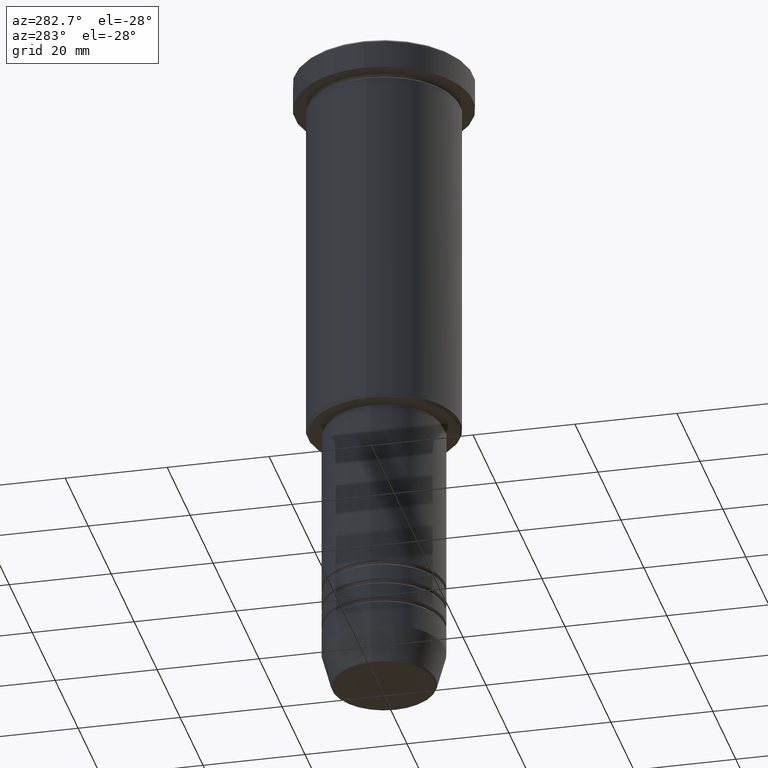
[diagram: clean part render]
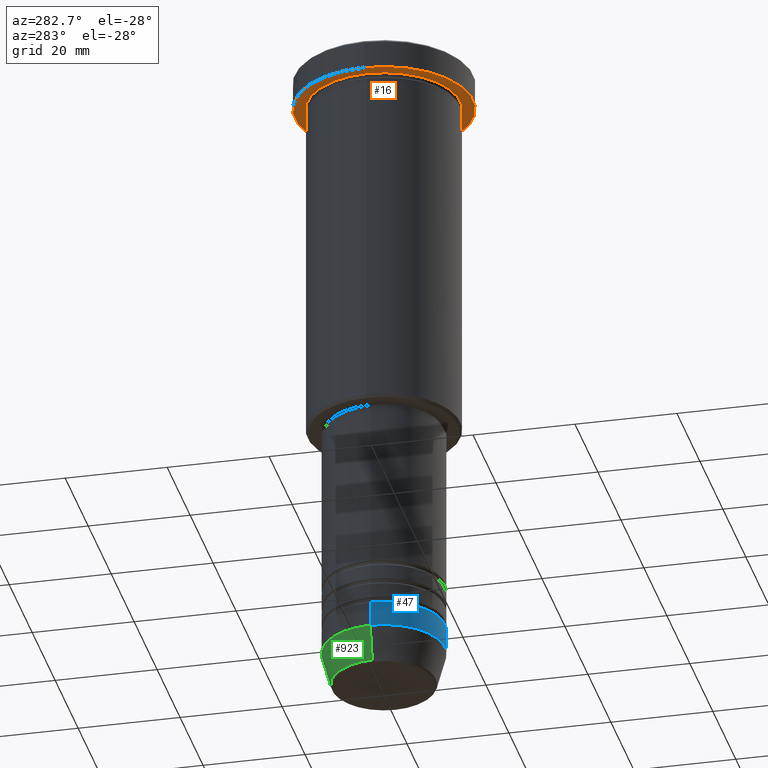
[diagram: same view with three faces highlighted in distinct colors, each labeled with its STEP entity id]
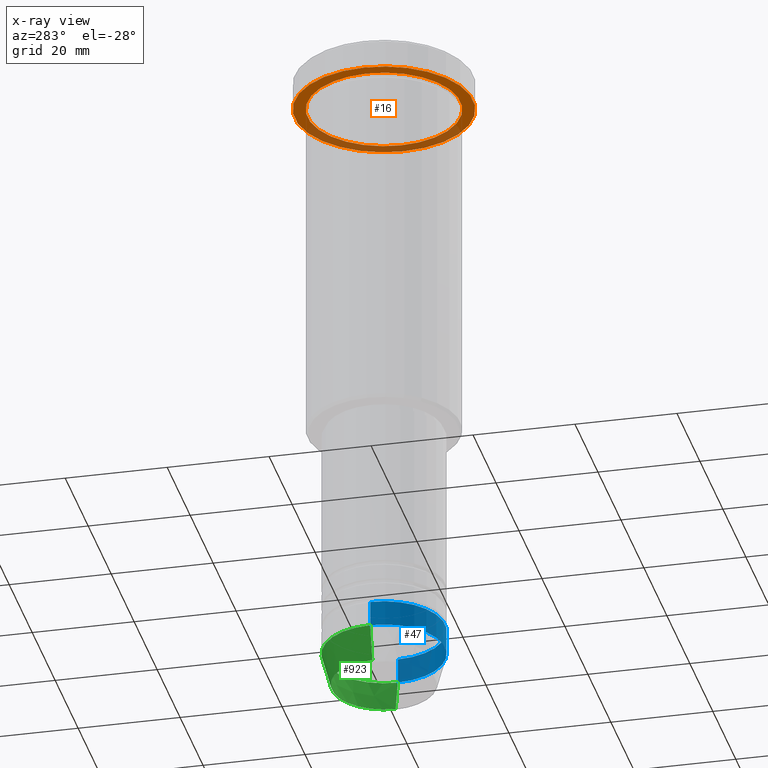
[diagram: x-ray of the same camera — body ghosted, the three highlighted faces saturated]
A machine part, auxiliary view with three faces highlighted in distinct colors.
The next image is the same camera in x-ray (body ghosted, the three faces saturated) — at least one of them is partly hidden behind the body in this view.
Their STEP definitions:

[orange] entity #16 — the highlighted planar face has unit normal (0, 0, -1).
#16 = ADVANCED_FACE ( 'NONE', ( #598, #129 ), #711, .T. ) ;
#115 = DIRECTION ( 'NONE',  ( -0.000000000000000000, -0.000000000000000000, 1.000000000000000000 ) ) ;
#119 = CARTESIAN_POINT ( 'NONE',  ( -15.00000000000000000, 0.000000000000000000, -5.999999999999994671 ) ) ;
#129 = FACE_OUTER_BOUND ( 'NONE', #158, .T. ) ;
#132 = EDGE_CURVE ( 'NONE', #797, #519, #288, .T. ) ;
#145 = AXIS2_PLACEMENT_3D ( 'NONE', #931, #115, #395 ) ;
#158 = EDGE_LOOP ( 'NONE', ( #1109, #476 ) ) ;
#180 = ORIENTED_EDGE ( 'NONE', *, *, #132, .T. ) ;
#196 = CARTESIAN_POINT ( 'NONE',  ( 17.50000000000000000, 0.000000000000000000, -5.999999999999995559 ) ) ;
#217 = CARTESIAN_POINT ( 'NONE',  ( -17.50000000000000000, 2.143131898507868248E-15, -5.999999999999995559 ) ) ;
#220 = EDGE_CURVE ( 'NONE', #904, #509, #665, .T. ) ;
#288 = CIRCLE ( 'NONE', #417, 15.00000000000000000 ) ;
#321 = EDGE_LOOP ( 'NONE', ( #1056, #180 ) ) ;
#356 = DIRECTION ( 'NONE',  ( -0.000000000000000000, -0.000000000000000000, 1.000000000000000000 ) ) ;
#395 = DIRECTION ( 'NONE',  ( 1.000000000000000000, 0.000000000000000000, 0.000000000000000000 ) ) ;
#417 = AXIS2_PLACEMENT_3D ( 'NONE', #722, #456, #1074 ) ;
#456 = DIRECTION ( 'NONE',  ( -0.000000000000000000, -0.000000000000000000, 1.000000000000000000 ) ) ;
#476 = ORIENTED_EDGE ( 'NONE', *, *, #220, .F. ) ;
#500 = CARTESIAN_POINT ( 'NONE',  ( 0.000000000000000000, 17.50000000000000000, -5.999999999999995559 ) ) ;
#509 = VERTEX_POINT ( 'NONE', #196 ) ;
#519 = VERTEX_POINT ( 'NONE', #119 ) ;
#598 = FACE_BOUND ( 'NONE', #321, .T. ) ;
#600 = EDGE_CURVE ( 'NONE', #509, #904, #1153, .T. ) ;
#662 = DIRECTION ( 'NONE',  ( -1.000000000000000000, 0.000000000000000000, 0.000000000000000000 ) ) ;
#665 = CIRCLE ( 'NONE', #145, 17.50000000000000000 ) ;
#702 = DIRECTION ( 'NONE',  ( -0.000000000000000000, -0.000000000000000000, 1.000000000000000000 ) ) ;
#711 = PLANE ( 'NONE',  #765 ) ;
#722 = CARTESIAN_POINT ( 'NONE',  ( 0.000000000000000000, 0.000000000000000000, -5.999999999999995559 ) ) ;
#765 = AXIS2_PLACEMENT_3D ( 'NONE', #500, #873, #798 ) ;
#797 = VERTEX_POINT ( 'NONE', #868 ) ;
#798 = DIRECTION ( 'NONE',  ( -1.000000000000000000, 0.000000000000000000, -0.000000000000000000 ) ) ;
#811 = AXIS2_PLACEMENT_3D ( 'NONE', #894, #356, #662 ) ;
#868 = CARTESIAN_POINT ( 'NONE',  ( 15.00000000000000000, 1.836970198721029589E-15, -5.999999999999994671 ) ) ;
#873 = DIRECTION ( 'NONE',  ( 0.000000000000000000, 0.000000000000000000, -1.000000000000000000 ) ) ;
#893 = EDGE_CURVE ( 'NONE', #519, #797, #1116, .T. ) ;
#894 = CARTESIAN_POINT ( 'NONE',  ( 0.000000000000000000, 0.000000000000000000, -5.999999999999995559 ) ) ;
#897 = CARTESIAN_POINT ( 'NONE',  ( 0.000000000000000000, 0.000000000000000000, -5.999999999999995559 ) ) ;
#904 = VERTEX_POINT ( 'NONE', #217 ) ;
#931 = CARTESIAN_POINT ( 'NONE',  ( 0.000000000000000000, 0.000000000000000000, -5.999999999999995559 ) ) ;
#1056 = ORIENTED_EDGE ( 'NONE', *, *, #893, .T. ) ;
#1068 = AXIS2_PLACEMENT_3D ( 'NONE', #897, #702, #1139 ) ;
#1074 = DIRECTION ( 'NONE',  ( -1.000000000000000000, 0.000000000000000000, 0.000000000000000000 ) ) ;
#1109 = ORIENTED_EDGE ( 'NONE', *, *, #600, .F. ) ;
#1116 = CIRCLE ( 'NONE', #811, 15.00000000000000000 ) ;
#1139 = DIRECTION ( 'NONE',  ( 1.000000000000000000, 0.000000000000000000, 0.000000000000000000 ) ) ;
#1153 = CIRCLE ( 'NONE', #1068, 17.50000000000000000 ) ;

[blue] entity #47 — the highlighted cylindrical surface (partial cylindrical patch) has radius 12 mm, axis along (-0, -0, 1).
#43 = CARTESIAN_POINT ( 'NONE',  ( 12.00000000000000000, 0.000000000000000000, -124.0000000000000000 ) ) ;
#47 = ADVANCED_FACE ( 'NONE', ( #235 ), #614, .T. ) ;
#64 = ORIENTED_EDGE ( 'NONE', *, *, #512, .T. ) ;
#83 = ORIENTED_EDGE ( 'NONE', *, *, #946, .T. ) ;
#91 = DIRECTION ( 'NONE',  ( -0.000000000000000000, -0.000000000000000000, 1.000000000000000000 ) ) ;
#101 = ORIENTED_EDGE ( 'NONE', *, *, #1025, .F. ) ;
#141 = DIRECTION ( 'NONE',  ( -0.000000000000000000, -0.000000000000000000, 1.000000000000000000 ) ) ;
#189 = LINE ( 'NONE', #283, #388 ) ;
#199 = LINE ( 'NONE', #1162, #444 ) ;
#211 = DIRECTION ( 'NONE',  ( -0.000000000000000000, -0.000000000000000000, 1.000000000000000000 ) ) ;
#235 = FACE_OUTER_BOUND ( 'NONE', #244, .T. ) ;
#241 = ORIENTED_EDGE ( 'NONE', *, *, #820, .F. ) ;
#244 = EDGE_LOOP ( 'NONE', ( #241, #64, #83, #101 ) ) ;
#283 = CARTESIAN_POINT ( 'NONE',  ( -12.00000000000000000, 1.469576158976823947E-15, 0.000000000000000000 ) ) ;
#315 = CARTESIAN_POINT ( 'NONE',  ( -12.00000000000000000, 1.469576158976823947E-15, -124.0000000000000000 ) ) ;
#330 = CARTESIAN_POINT ( 'NONE',  ( 12.00000000000000000, 0.000000000000000000, -119.0000000000000000 ) ) ;
#336 = VERTEX_POINT ( 'NONE', #315 ) ;
#357 = VERTEX_POINT ( 'NONE', #1130 ) ;
#387 = AXIS2_PLACEMENT_3D ( 'NONE', #861, #594, #403 ) ;
#388 = VECTOR ( 'NONE', #91, 1000.000000000000000 ) ;
#403 = DIRECTION ( 'NONE',  ( 1.000000000000000000, 0.000000000000000000, 0.000000000000000000 ) ) ;
#442 = CIRCLE ( 'NONE', #387, 12.00000000000000000 ) ;
#444 = VECTOR ( 'NONE', #1081, 1000.000000000000000 ) ;
#489 = CARTESIAN_POINT ( 'NONE',  ( 0.000000000000000000, 0.000000000000000000, -119.0000000000000000 ) ) ;
#496 = CIRCLE ( 'NONE', #916, 12.00000000000000000 ) ;
#512 = EDGE_CURVE ( 'NONE', #336, #574, #442, .T. ) ;
#574 = VERTEX_POINT ( 'NONE', #43 ) ;
#594 = DIRECTION ( 'NONE',  ( -0.000000000000000000, -0.000000000000000000, 1.000000000000000000 ) ) ;
#614 = CYLINDRICAL_SURFACE ( 'NONE', #834, 12.00000000000000000 ) ;
#684 = DIRECTION ( 'NONE',  ( 1.000000000000000000, 0.000000000000000000, 0.000000000000000000 ) ) ;
#773 = VERTEX_POINT ( 'NONE', #330 ) ;
#820 = EDGE_CURVE ( 'NONE', #336, #357, #189, .T. ) ;
#834 = AXIS2_PLACEMENT_3D ( 'NONE', #957, #141, #867 ) ;
#861 = CARTESIAN_POINT ( 'NONE',  ( 0.000000000000000000, 0.000000000000000000, -124.0000000000000000 ) ) ;
#867 = DIRECTION ( 'NONE',  ( 1.000000000000000000, 0.000000000000000000, 0.000000000000000000 ) ) ;
#916 = AXIS2_PLACEMENT_3D ( 'NONE', #489, #211, #684 ) ;
#946 = EDGE_CURVE ( 'NONE', #574, #773, #199, .T. ) ;
#957 = CARTESIAN_POINT ( 'NONE',  ( 0.000000000000000000, 0.000000000000000000, 0.000000000000000000 ) ) ;
#1025 = EDGE_CURVE ( 'NONE', #357, #773, #496, .T. ) ;
#1081 = DIRECTION ( 'NONE',  ( -0.000000000000000000, -0.000000000000000000, 1.000000000000000000 ) ) ;
#1130 = CARTESIAN_POINT ( 'NONE',  ( -12.00000000000000000, 1.469576158976823947E-15, -119.0000000000000000 ) ) ;
#1162 = CARTESIAN_POINT ( 'NONE',  ( 12.00000000000000000, 0.000000000000000000, 0.000000000000000000 ) ) ;

[green] entity #923 — the highlighted conical surface has half-angle 15 deg.
#43 = CARTESIAN_POINT ( 'NONE',  ( 12.00000000000000000, 0.000000000000000000, -124.0000000000000000 ) ) ;
#128 = AXIS2_PLACEMENT_3D ( 'NONE', #155, #802, #533 ) ;
#130 = LINE ( 'NONE', #409, #361 ) ;
#155 = CARTESIAN_POINT ( 'NONE',  ( 0.000000000000000000, 0.000000000000000000, -130.6294095225512422 ) ) ;
#156 = EDGE_CURVE ( 'NONE', #574, #336, #681, .T. ) ;
#171 = CARTESIAN_POINT ( 'NONE',  ( 10.22365507213718949, 0.000000000000000000, -130.6294095225512422 ) ) ;
#228 = DIRECTION ( 'NONE',  ( 0.2588190451025213501, 0.000000000000000000, 0.9659258262890680902 ) ) ;
#233 = CARTESIAN_POINT ( 'NONE',  ( 12.00000000000000000, 0.000000000000000000, -124.0000000000000000 ) ) ;
#250 = CONICAL_SURFACE ( 'NONE', #308, 12.00000000000000000, 0.2617993877991500740 ) ;
#281 = DIRECTION ( 'NONE',  ( 1.000000000000000000, 0.000000000000000000, 0.000000000000000000 ) ) ;
#308 = AXIS2_PLACEMENT_3D ( 'NONE', #840, #390, #1031 ) ;
#315 = CARTESIAN_POINT ( 'NONE',  ( -12.00000000000000000, 1.469576158976823947E-15, -124.0000000000000000 ) ) ;
#336 = VERTEX_POINT ( 'NONE', #315 ) ;
#342 = EDGE_CURVE ( 'NONE', #976, #574, #1050, .T. ) ;
#361 = VECTOR ( 'NONE', #860, 1000.000000000000000 ) ;
#386 = VECTOR ( 'NONE', #228, 1000.000000000000000 ) ;
#390 = DIRECTION ( 'NONE',  ( -0.000000000000000000, -0.000000000000000000, 1.000000000000000000 ) ) ;
#399 = AXIS2_PLACEMENT_3D ( 'NONE', #989, #1001, #281 ) ;
#409 = CARTESIAN_POINT ( 'NONE',  ( -12.00000000000000000, 1.469576158976823947E-15, -124.0000000000000000 ) ) ;
#533 = DIRECTION ( 'NONE',  ( 1.000000000000000000, 0.000000000000000000, 0.000000000000000000 ) ) ;
#574 = VERTEX_POINT ( 'NONE', #43 ) ;
#612 = EDGE_LOOP ( 'NONE', ( #656, #910, #1055, #710 ) ) ;
#656 = ORIENTED_EDGE ( 'NONE', *, *, #1098, .T. ) ;
#668 = FACE_OUTER_BOUND ( 'NONE', #612, .T. ) ;
#670 = CIRCLE ( 'NONE', #128, 10.22365507213718949 ) ;
#681 = CIRCLE ( 'NONE', #399, 12.00000000000000000 ) ;
#710 = ORIENTED_EDGE ( 'NONE', *, *, #342, .F. ) ;
#733 = EDGE_CURVE ( 'NONE', #1143, #336, #130, .T. ) ;
#802 = DIRECTION ( 'NONE',  ( -0.000000000000000000, -0.000000000000000000, 1.000000000000000000 ) ) ;
#840 = CARTESIAN_POINT ( 'NONE',  ( 0.000000000000000000, 0.000000000000000000, -124.0000000000000000 ) ) ;
#860 = DIRECTION ( 'NONE',  ( -0.2588190451025213501, 3.169619151431772337E-17, 0.9659258262890680902 ) ) ;
#910 = ORIENTED_EDGE ( 'NONE', *, *, #733, .T. ) ;
#923 = ADVANCED_FACE ( 'NONE', ( #668 ), #250, .T. ) ;
#976 = VERTEX_POINT ( 'NONE', #171 ) ;
#989 = CARTESIAN_POINT ( 'NONE',  ( 0.000000000000000000, 0.000000000000000000, -124.0000000000000000 ) ) ;
#998 = CARTESIAN_POINT ( 'NONE',  ( -10.22365507213718949, 1.360806402472382744E-15, -130.6294095225512422 ) ) ;
#1001 = DIRECTION ( 'NONE',  ( -0.000000000000000000, -0.000000000000000000, 1.000000000000000000 ) ) ;
#1031 = DIRECTION ( 'NONE',  ( 1.000000000000000000, 0.000000000000000000, 0.000000000000000000 ) ) ;
#1050 = LINE ( 'NONE', #233, #386 ) ;
#1055 = ORIENTED_EDGE ( 'NONE', *, *, #156, .F. ) ;
#1098 = EDGE_CURVE ( 'NONE', #976, #1143, #670, .T. ) ;
#1143 = VERTEX_POINT ( 'NONE', #998 ) ;